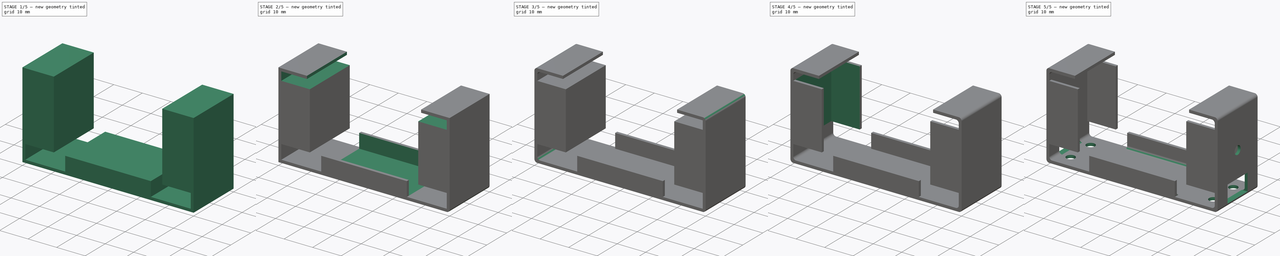
[diagram: build sequence overview — one tinted view per stage of 5, left to right]
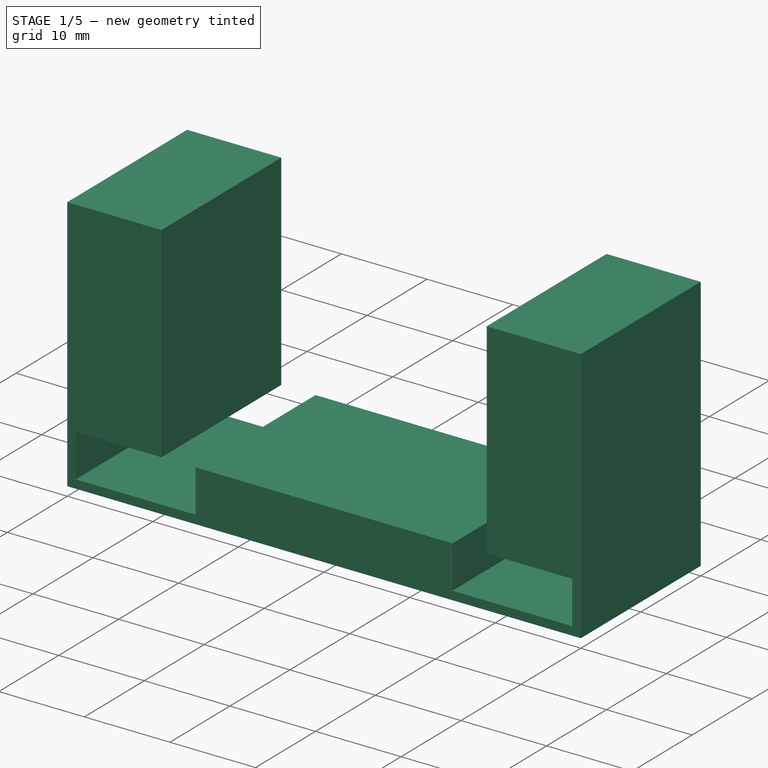
[diagram: stage 1 of 5 — iso view after this stage's code; geometry added in this stage tinted green]
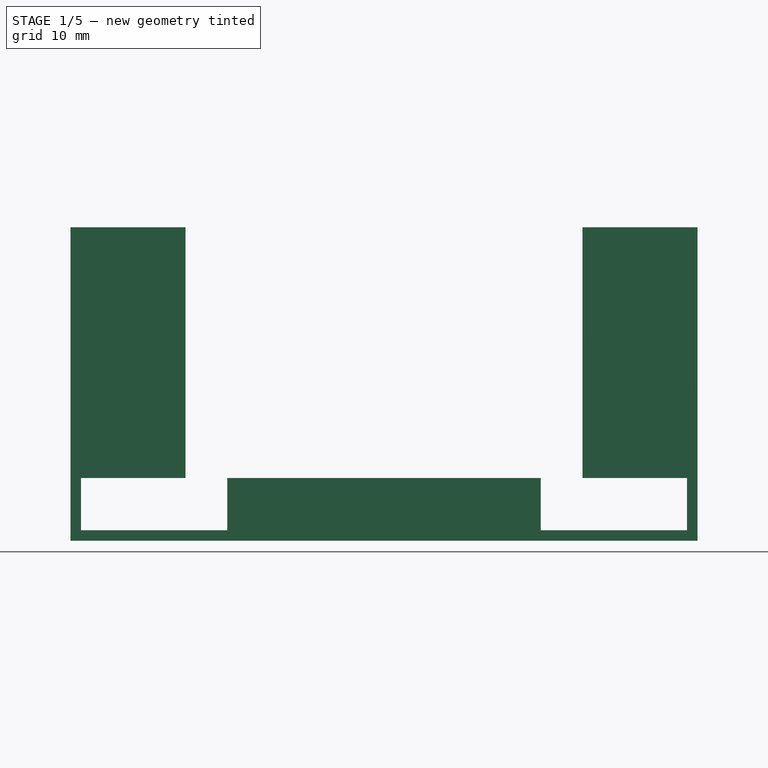
[diagram: stage 1 of 5 — front view after this stage's code; geometry added in this stage tinted green]
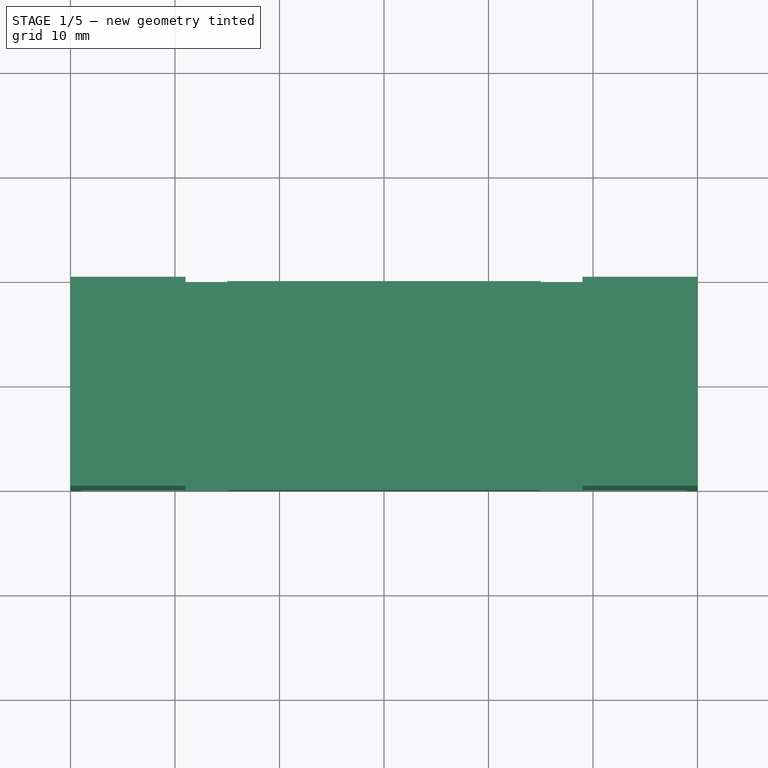
[diagram: stage 1 of 5 — top view after this stage's code; geometry added in this stage tinted green]
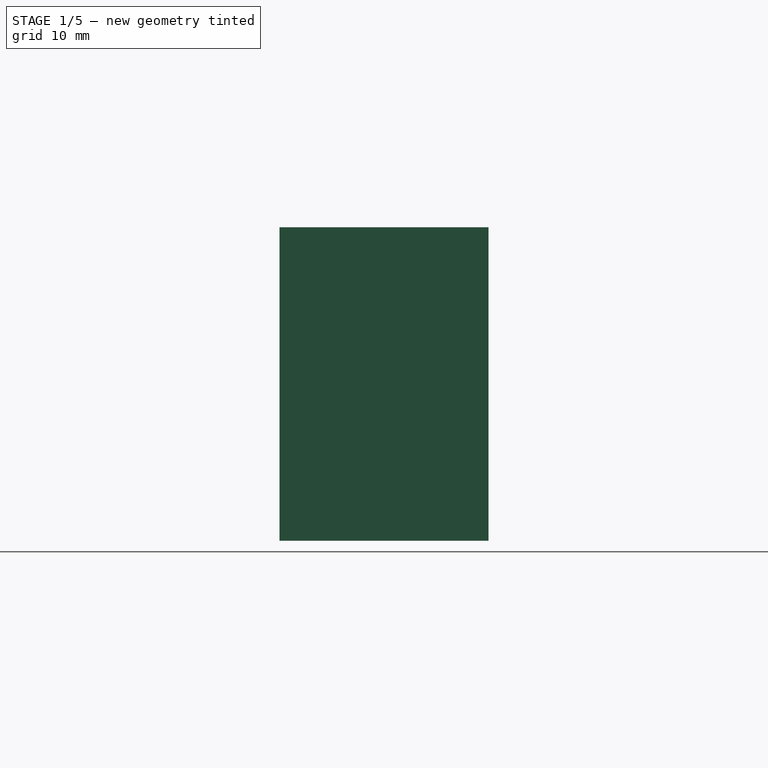
[diagram: stage 1 of 5 — right view after this stage's code; geometry added in this stage tinted green]
FCSTD DOCUMENT  (FreeCAD 0.17R13541 (Git))
Label: supp1
License: All rights reserved
LicenseURL: http://en.wikipedia.org/wiki/All_rights_reserved
objects: Sketcher::SketchObject×17, PartDesign::Pocket×12, PartDesign::Fillet×10, PartDesign::Body×2, PartDesign::Pad×1
note: 55 computed .brp shape members not serialized (recipe doc carries the construction recipe); baked Part::Feature solids carry a one-line shape summary decoded from their .brp

FEATURE [PartDesign::Body] Body
  Origin = -> Origin
FEATURE [Sketcher::SketchObject] Sketch
  MapMode = 5
  Placement = pos=(0,0,0) rot=(1,0,0;1.5708rad)
  Support = -> [XZ_Plane001]
  sketch-geometry (4):
    g0: LineSegment StartX=0 StartY=0 StartZ=0 EndX=60 EndY=0 EndZ=0
    g1: LineSegment StartX=60 StartY=0 StartZ=0 EndX=60 EndY=30 EndZ=0
    g2: LineSegment StartX=60 StartY=30 StartZ=0 EndX=0 EndY=30 EndZ=0
    g3: LineSegment StartX=0 StartY=30 StartZ=0 EndX=0 EndY=0 EndZ=0
  constraints (11):
    c: Coincident(g0,g1)
    c: Coincident(g1,g2)
    c: Coincident(g2,g3)
    c: Coincident(g3,g0)
    c: Horizontal(g0)
    c: Horizontal(g2)
    c: Vertical(g1)
    c: Vertical(g3)
    c: Coincident(g0,g-1)
    c: DistanceX(g0,g0) = 60
    c: DistanceY(g3,g3) = 30
FEATURE [PartDesign::Pad] Pad
  Length = 20
  Length2 = 100
  Placement = pos=(0,0,0) rot=(1,0,0;1.5708rad)
  Profile = -> Sketch
  Type = 0
FEATURE [Sketcher::SketchObject] Sketch001
  ExternalGeometry = -> [Pad]
  MapMode = 5
  Placement = pos=(0,-20,0) rot=(1,0,0;1.5708rad)
  Support = -> [Pad]
  sketch-geometry (4):
    g0: LineSegment StartX=1 StartY=1 StartZ=0 EndX=15 EndY=1 EndZ=0
    g1: LineSegment StartX=15 StartY=1 StartZ=0 EndX=15 EndY=6 EndZ=0
    g2: LineSegment StartX=15 StartY=6 StartZ=0 EndX=1 EndY=6 EndZ=0
    g3: LineSegment StartX=1 StartY=6 StartZ=0 EndX=1 EndY=1 EndZ=0
  constraints (12):
    c: Coincident(g0,g1)
    c: Coincident(g1,g2)
    c: Coincident(g2,g3)
    c: Coincident(g3,g0)
    c: Horizontal(g0)
    c: Horizontal(g2)
    c: Vertical(g1)
    c: Vertical(g3)
    c: DistanceY(g3,g3) = 5
    c: DistanceX(g2,g2) = 14
    c: DistanceX(g0) = 1
    c: DistanceY(g0) = 1
FEATURE [PartDesign::Pocket] Pocket
  BaseFeature = -> Pad
  Length = 5
  Length2 = 100
  Placement = pos=(0,0,0) rot=(1,0,0;1.5708rad)
  Profile = -> Sketch001
  Type = 1
FEATURE [Sketcher::SketchObject] Sketch002
  ExternalGeometry = -> [Pocket]
  MapMode = 5
  Placement = pos=(0,-20,0) rot=(1,0,0;1.5708rad)
  Support = -> [Pocket]
  sketch-geometry (4):
    g0: LineSegment StartX=45 StartY=6 StartZ=0 EndX=59 EndY=6 EndZ=0
    g1: LineSegment StartX=59 StartY=6 StartZ=0 EndX=59 EndY=1 EndZ=0
    g2: LineSegment StartX=59 StartY=1 StartZ=0 EndX=45 EndY=1 EndZ=0
    g3: LineSegment StartX=45 StartY=1 StartZ=0 EndX=45 EndY=6 EndZ=0
  constraints (10):
    c: Coincident(g0,g1)
    c: Coincident(g1,g2)
    c: Coincident(g2,g3)
    c: Coincident(g3,g0)
    c: Horizontal(g0)
    c: Horizontal(g2)
    c: Vertical(g1)
    c: Vertical(g3)
    c: DistanceX(g0,g0) = 14
    c: DistanceY(g3,g3) = 5
FEATURE [PartDesign::Pocket] Pocket001
  BaseFeature = -> Pocket
  Length = 5
  Length2 = 100
  Placement = pos=(0,0,0) rot=(1,0,0;1.5708rad)
  Profile = -> Sketch002
  Type = 1
FEATURE [Sketcher::SketchObject] Sketch003
  ExternalGeometry = -> [Pocket001]
  MapMode = 5
  Placement = pos=(0,-20,0) rot=(1,0,0;1.5708rad)
  Support = -> [Pocket001]
  sketch-geometry (4):
    g0: LineSegment StartX=11 StartY=6 StartZ=0 EndX=49 EndY=6 EndZ=0
    g1: LineSegment StartX=49 StartY=6 StartZ=0 EndX=49 EndY=26 EndZ=0
    g2: LineSegment StartX=49 StartY=26 StartZ=0 EndX=11 EndY=26 EndZ=0
    g3: LineSegment StartX=11 StartY=26 StartZ=0 EndX=11 EndY=6 EndZ=0
  constraints (11):
    c: DistanceX(g0,g-3) = 4
    c: DistanceX(g-4,g0) = 4
    c: Coincident(g0,g1)
    c: Coincident(g1,g2)
    c: Coincident(g2,g3)
    c: Coincident(g3,g0)
    c: Horizontal(g0)
    c: Horizontal(g2)
    c: Vertical(g1)
    c: Vertical(g3)
    c: DistanceY(g3,g3) = 20
FEATURE [PartDesign::Pocket] Pocket002
  BaseFeature = -> Pocket001
  Length = 5
  Length2 = 100
  Placement = pos=(0,0,0) rot=(1,0,0;1.5708rad)
  Profile = -> Sketch003
  Type = 1
FEATURE [Sketcher::SketchObject] Sketch004
  MapMode = 5
  Placement = pos=(0,-20,0) rot=(1,0,0;1.5708rad)
  Support = -> [Pocket002]
FEATURE [Sketcher::SketchObject] Sketch005
  ExternalGeometry = -> [Pocket002]
  MapMode = 5
  Placement = pos=(0,-20,0) rot=(1,0,0;1.5708rad)
  Support = -> [Pocket002]
  sketch-geometry (4):
    g0: LineSegment StartX=11 StartY=26 StartZ=0 EndX=49 EndY=26 EndZ=0
    g1: LineSegment StartX=49 StartY=26 StartZ=0 EndX=49 EndY=31 EndZ=0
    g2: LineSegment StartX=49 StartY=31 StartZ=0 EndX=11 EndY=31 EndZ=0
    g3: LineSegment StartX=11 StartY=31 StartZ=0 EndX=11 EndY=26 EndZ=0
  constraints (11):
    c: Coincident(g0,g1)
    c: Coincident(g1,g2)
    c: Coincident(g2,g3)
    c: Coincident(g3,g0)
    c: Horizontal(g0)
    c: Horizontal(g2)
    c: Vertical(g1)
    c: Vertical(g3)
    c: Coincident(g0,g-3)
    c: DistanceY(g3,g3) = 5
    c: Coincident(g0,g-4)
FEATURE [PartDesign::Pocket] Pocket003
  BaseFeature = -> Pocket002
  Length = 5
  Length2 = 100
  Placement = pos=(0,0,0) rot=(1,0,0;1.5708rad)
  Profile = -> Sketch005
  Type = 1
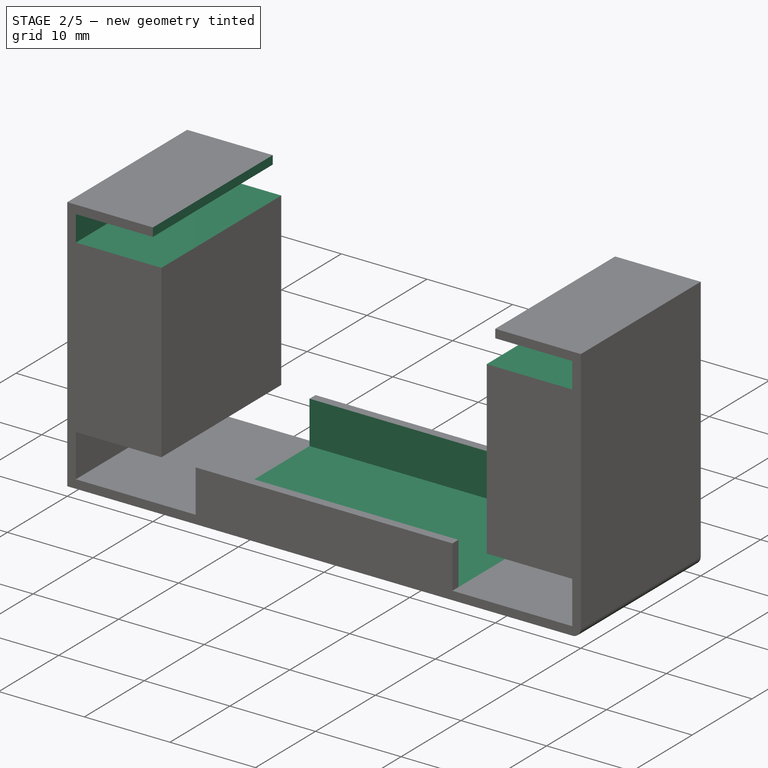
[diagram: stage 2 of 5 — iso view after this stage's code; geometry added in this stage tinted green]
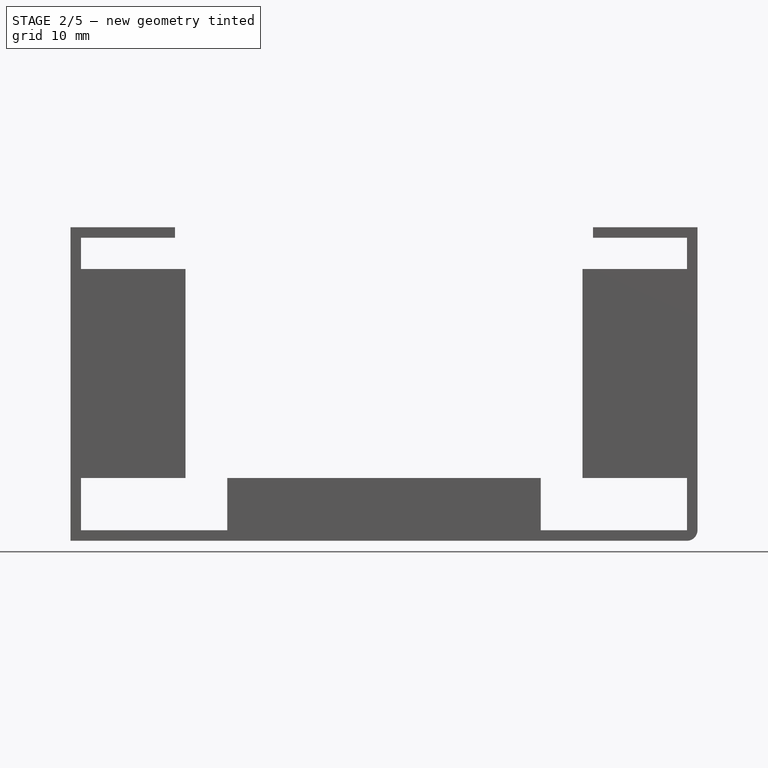
[diagram: stage 2 of 5 — front view after this stage's code; geometry added in this stage tinted green]
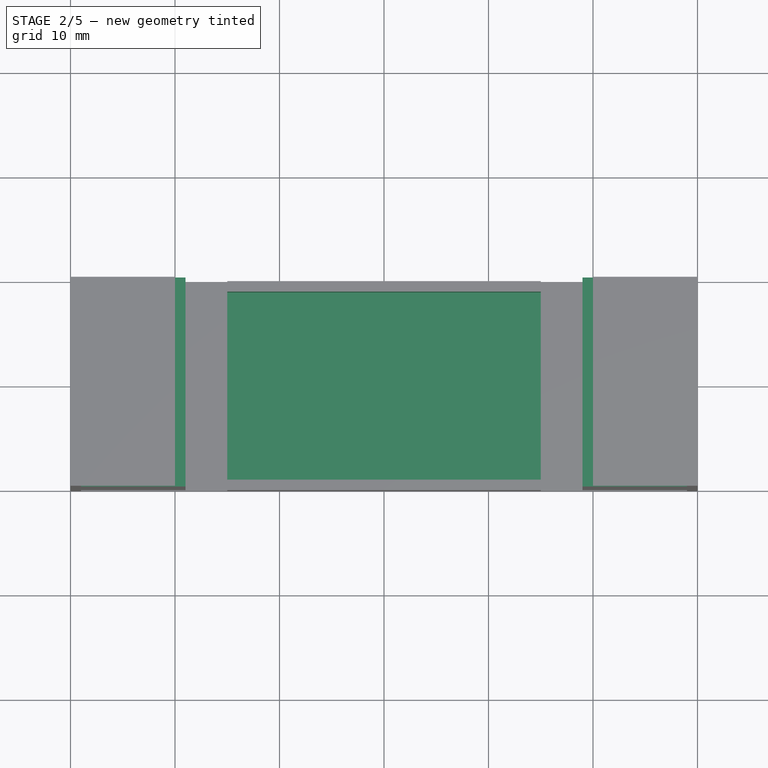
[diagram: stage 2 of 5 — top view after this stage's code; geometry added in this stage tinted green]
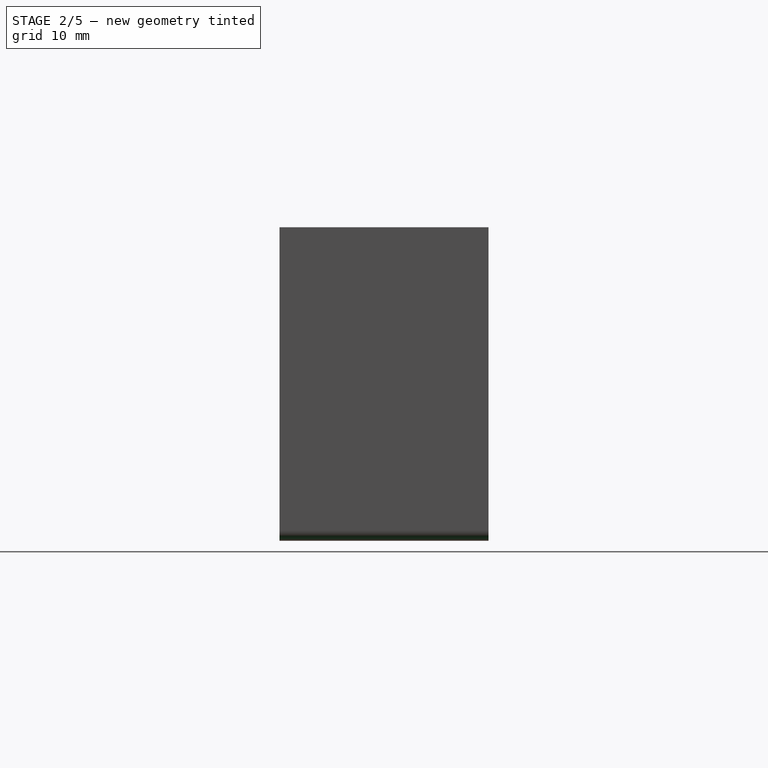
[diagram: stage 2 of 5 — right view after this stage's code; geometry added in this stage tinted green]
FEATURE [Sketcher::SketchObject] Sketch006
  ExternalGeometry = -> [Pocket003]
  MapMode = 5
  Placement = pos=(0,-20,0) rot=(1,0,0;1.5708rad)
  Support = -> [Pocket003]
  sketch-geometry (8):
    g0: LineSegment StartX=1 StartY=29 StartZ=0 EndX=10 EndY=29 EndZ=0
    g1: LineSegment StartX=10 StartY=29 StartZ=0 EndX=10 EndY=26 EndZ=0
    g2: LineSegment StartX=10 StartY=26 StartZ=0 EndX=1 EndY=26 EndZ=0
    g3: LineSegment StartX=1 StartY=26 StartZ=0 EndX=1 EndY=29 EndZ=0
    g4: LineSegment StartX=50 StartY=29 StartZ=0 EndX=59 EndY=29 EndZ=0
    g5: LineSegment StartX=59 StartY=29 StartZ=0 EndX=59 EndY=26 EndZ=0
    g6: LineSegment StartX=59 StartY=26 StartZ=0 EndX=50 EndY=26 EndZ=0
    g7: LineSegment StartX=50 StartY=26 StartZ=0 EndX=50 EndY=29 EndZ=0
  constraints (20):
    c: Coincident(g0,g1)
    c: Coincident(g1,g2)
    c: Coincident(g2,g3)
    c: Coincident(g3,g0)
    c: Horizontal(g0)
    c: Horizontal(g2)
    c: Vertical(g1)
    c: Vertical(g3)
    c: DistanceX(g0,g0) = 9
    c: DistanceY(g1,g1) = 3
    c: Coincident(g4,g5)
    c: Coincident(g5,g6)
    c: Coincident(g6,g7)
    c: Coincident(g7,g4)
    c: Horizontal(g4)
    c: Horizontal(g6)
    c: Vertical(g5)
    c: Vertical(g7)
    c: DistanceX(g4,g4) = 9
    c: DistanceY(g5,g5) = 3
FEATURE [PartDesign::Pocket] Pocket004
  BaseFeature = -> Pocket003
  Length = 5
  Length2 = 100
  Placement = pos=(0,0,0) rot=(1,0,0;1.5708rad)
  Profile = -> Sketch006
  Type = 1
FEATURE [Sketcher::SketchObject] Sketch007
  ExternalGeometry = -> [Pocket004]
  MapMode = 5
  Placement = pos=(0,-20,0) rot=(1,0,0;1.5708rad)
  Support = -> [Pocket004]
  sketch-geometry (8):
    g0: LineSegment StartX=10 StartY=26 StartZ=0 EndX=11 EndY=26 EndZ=0
    g1: LineSegment StartX=11 StartY=26 StartZ=0 EndX=11 EndY=30 EndZ=0
    g2: LineSegment StartX=11 StartY=30 StartZ=0 EndX=10 EndY=30 EndZ=0
    g3: LineSegment StartX=10 StartY=30 StartZ=0 EndX=10 EndY=26 EndZ=0
    g4: LineSegment StartX=50 StartY=26 StartZ=0 EndX=49 EndY=26 EndZ=0
    g5: LineSegment StartX=49 StartY=26 StartZ=0 EndX=49 EndY=30 EndZ=0
    g6: LineSegment StartX=49 StartY=30 StartZ=0 EndX=50 EndY=30 EndZ=0
    g7: LineSegment StartX=50 StartY=30 StartZ=0 EndX=50 EndY=26 EndZ=0
  constraints (20):
    c: Coincident(g0,g1)
    c: Coincident(g1,g2)
    c: Coincident(g2,g3)
    c: Coincident(g3,g0)
    c: Horizontal(g0)
    c: Horizontal(g2)
    c: Vertical(g1)
    c: Vertical(g3)
    c: Coincident(g1,g-3)
    c: Coincident(g4,g5)
    c: Coincident(g5,g6)
    c: Coincident(g6,g7)
    c: Coincident(g7,g4)
    c: Horizontal(g4)
    c: Horizontal(g6)
    c: Vertical(g5)
    c: Vertical(g7)
    c: Coincident(g4,g-6)
    c: Coincident(g5,g-5)
    c: Coincident(g0,g-4)
FEATURE [PartDesign::Pocket] Pocket005
  BaseFeature = -> Pocket004
  Length = 5
  Length2 = 100
  Placement = pos=(0,0,0) rot=(1,0,0;1.5708rad)
  Profile = -> Sketch007
  Type = 1
FEATURE [Sketcher::SketchObject] Sketch008
  ExternalGeometry = -> [Pocket005]
  MapMode = 5
  Placement = pos=(0,0,6) rot=(0,0,1;3.14159rad)
  Support = -> [Pocket005]
  sketch-geometry (4):
    g0: LineSegment StartX=-45 StartY=19 StartZ=0 EndX=-15 EndY=19 EndZ=0
    g1: LineSegment StartX=-15 StartY=19 StartZ=0 EndX=-15 EndY=1 EndZ=0
    g2: LineSegment StartX=-15 StartY=1 StartZ=0 EndX=-45 EndY=1 EndZ=0
    g3: LineSegment StartX=-45 StartY=1 StartZ=0 EndX=-45 EndY=19 EndZ=0
  constraints (8):
    c: Coincident(g0,g1)
    c: Coincident(g1,g2)
    c: Coincident(g2,g3)
    c: Coincident(g3,g0)
    c: Horizontal(g0)
    c: Horizontal(g2)
    c: Vertical(g1)
    c: Vertical(g3)
FEATURE [PartDesign::Pocket] Pocket006
  BaseFeature = -> Pocket005
  Length = 5
  Length2 = 100
  Placement = pos=(0,0,0) rot=(1,0,0;1.5708rad)
  Profile = -> Sketch008
  Type = 0
FEATURE [PartDesign::Fillet] Fillet
  Base = -> Pocket006 [Edge2]
  BaseFeature = -> Pocket006
  Placement = pos=(0,0,0) rot=(1,0,0;1.5708rad)
  Radius = 1
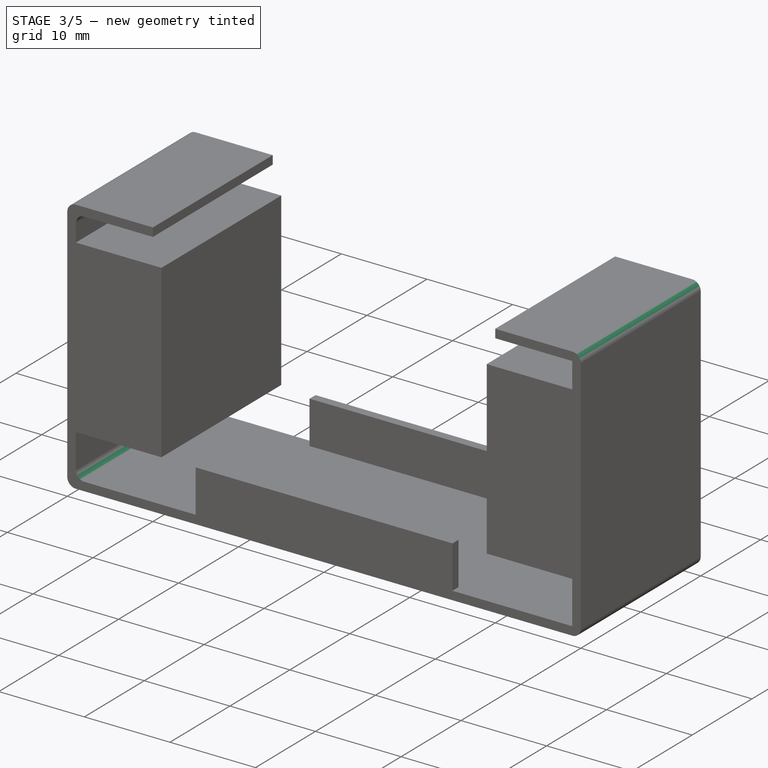
[diagram: stage 3 of 5 — iso view after this stage's code; geometry added in this stage tinted green]
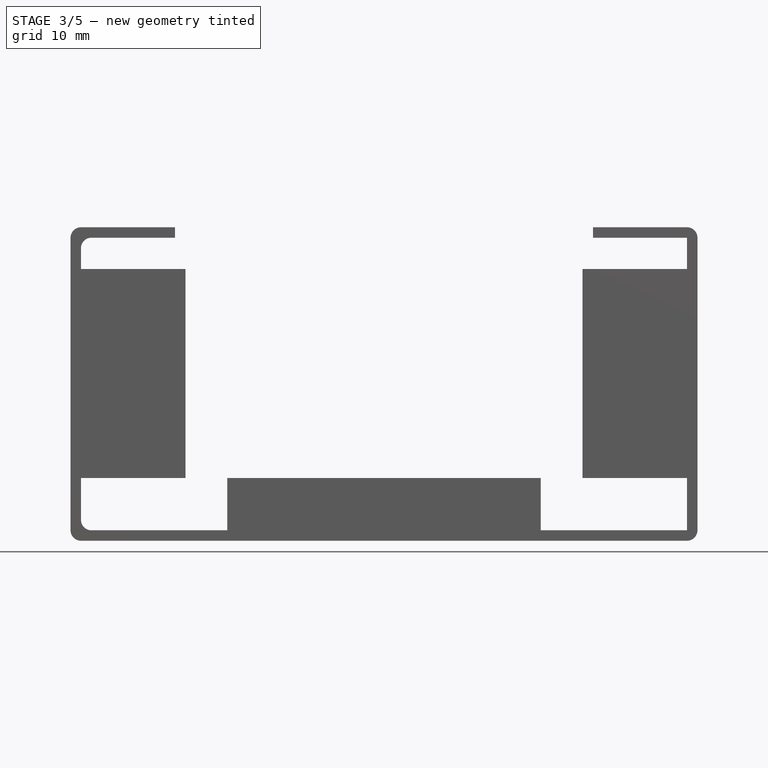
[diagram: stage 3 of 5 — front view after this stage's code; geometry added in this stage tinted green]
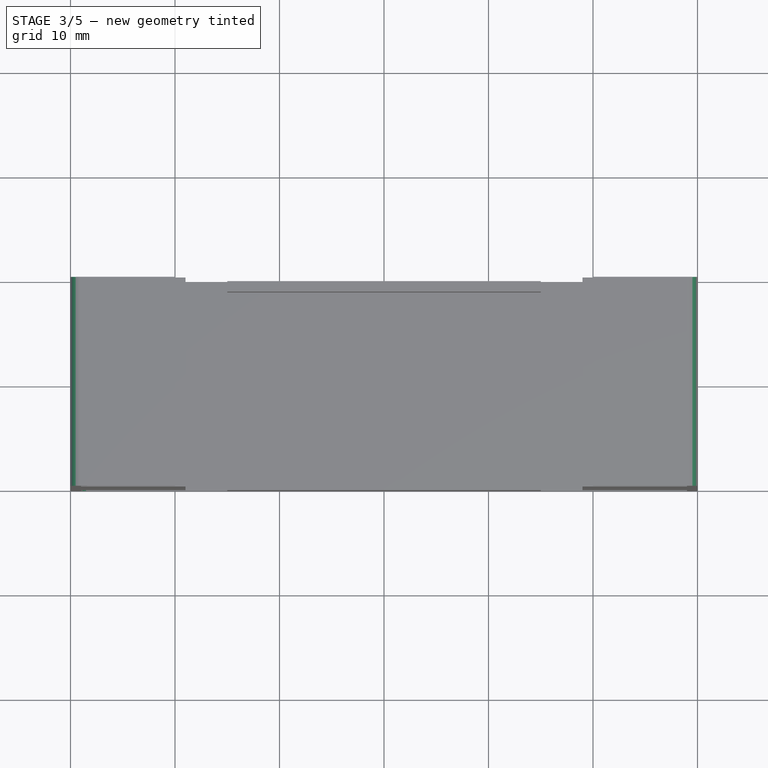
[diagram: stage 3 of 5 — top view after this stage's code; geometry added in this stage tinted green]
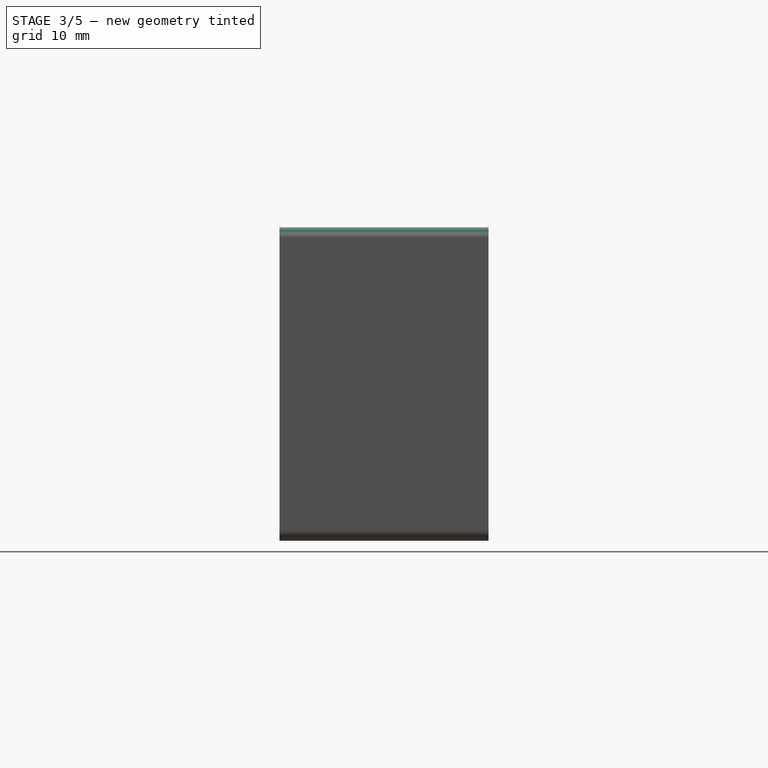
[diagram: stage 3 of 5 — right view after this stage's code; geometry added in this stage tinted green]
FEATURE [PartDesign::Fillet] Fillet001
  Base = -> Fillet [Edge3]
  BaseFeature = -> Fillet
  Placement = pos=(0,0,0) rot=(1,0,0;1.5708rad)
  Radius = 1
FEATURE [PartDesign::Fillet] Fillet002
  Base = -> Fillet001 [Edge61]
  BaseFeature = -> Fillet001
  Placement = pos=(0,0,0) rot=(1,0,0;1.5708rad)
  Radius = 1
FEATURE [PartDesign::Fillet] Fillet003
  Base = -> Fillet002 [Edge47]
  BaseFeature = -> Fillet002
  Placement = pos=(0,0,0) rot=(1,0,0;1.5708rad)
  Radius = 1
FEATURE [PartDesign::Fillet] Fillet004
  Base = -> Fillet003 [Edge65]
  BaseFeature = -> Fillet003
  Placement = pos=(0,0,0) rot=(1,0,0;1.5708rad)
  Radius = 1
FEATURE [PartDesign::Fillet] Fillet005
  Base = -> Fillet004 [Edge60]
  BaseFeature = -> Fillet004
  Placement = pos=(0,0,0) rot=(1,0,0;1.5708rad)
  Radius = 1
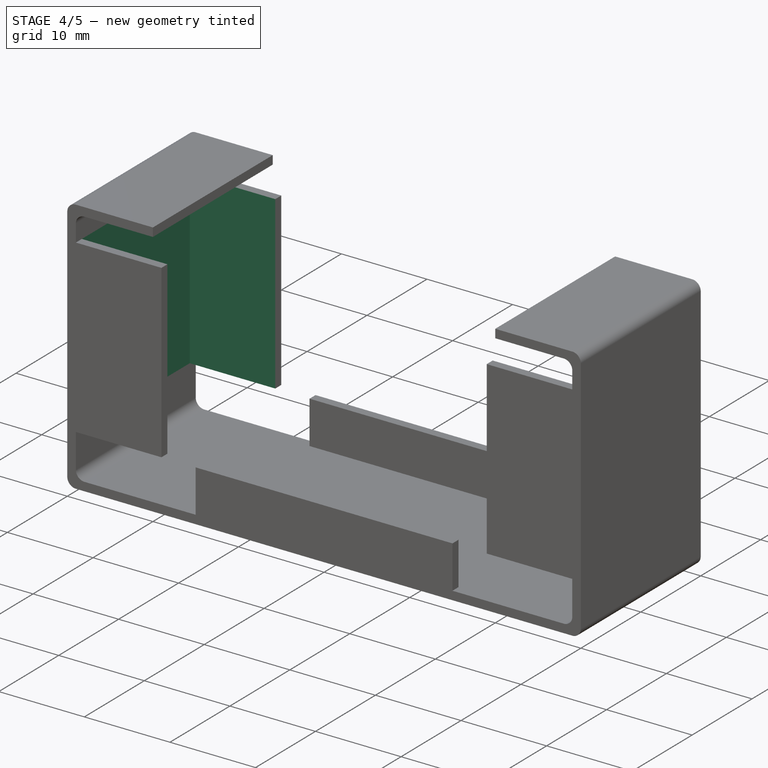
[diagram: stage 4 of 5 — iso view after this stage's code; geometry added in this stage tinted green]
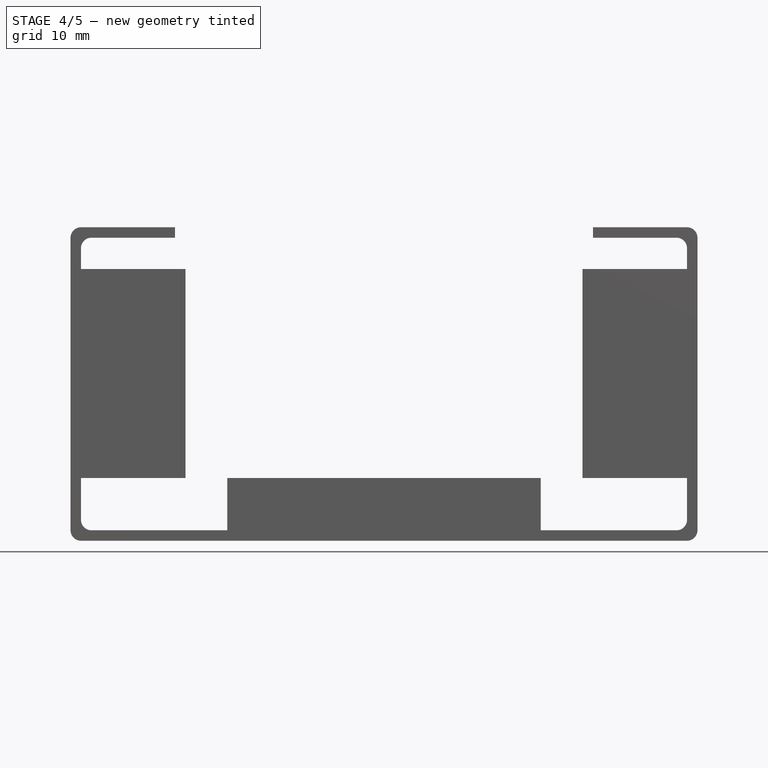
[diagram: stage 4 of 5 — front view after this stage's code; geometry added in this stage tinted green]
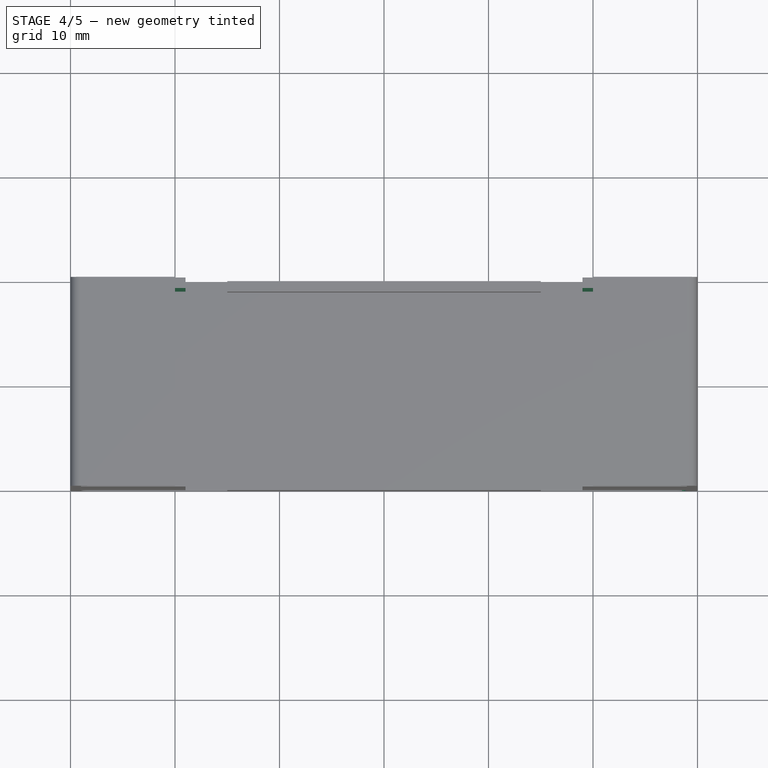
[diagram: stage 4 of 5 — top view after this stage's code; geometry added in this stage tinted green]
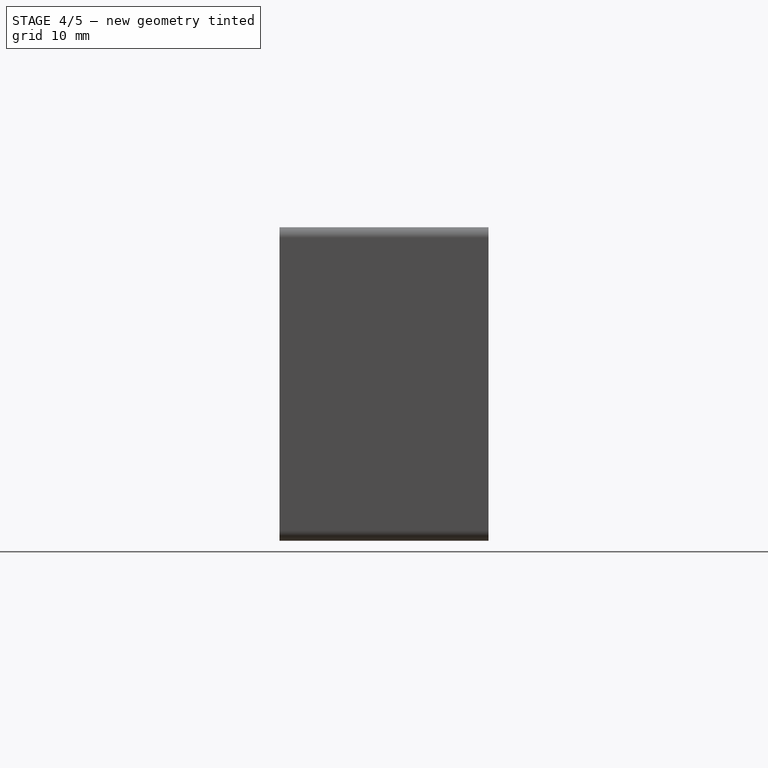
[diagram: stage 4 of 5 — right view after this stage's code; geometry added in this stage tinted green]
FEATURE [PartDesign::Fillet] Fillet006
  Base = -> Fillet005 [Edge85]
  BaseFeature = -> Fillet005
  Placement = pos=(0,0,0) rot=(1,0,0;1.5708rad)
  Radius = 1
FEATURE [PartDesign::Fillet] Fillet007
  Base = -> Fillet006 [Edge56]
  BaseFeature = -> Fillet006
  Placement = pos=(0,0,0) rot=(1,0,0;1.5708rad)
  Radius = 1
FEATURE [Sketcher::SketchObject] Sketch009
  MapMode = 5
  Placement = pos=(49,0,0) rot=(0.707107,0,-0.707107;3.14159rad)
  Support = -> [Fillet007]
FEATURE [Sketcher::SketchObject] Sketch010
  MapMode = 5
  Placement = pos=(49,0,0) rot=(0.707107,0,-0.707107;3.14159rad)
  Support = -> [Fillet007]
FEATURE [Sketcher::SketchObject] Sketch011
  ExternalGeometry = -> [Fillet007]
  MapMode = 5
  Placement = pos=(49,0,0) rot=(0.707107,0,-0.707107;3.14159rad)
  Support = -> [Fillet007]
  sketch-geometry (4):
    g0: LineSegment StartX=-26 StartY=1 StartZ=0 EndX=-6 EndY=1 EndZ=0
    g1: LineSegment StartX=-6 StartY=1 StartZ=0 EndX=-6 EndY=19 EndZ=0
    g2: LineSegment StartX=-6 StartY=19 StartZ=0 EndX=-26 EndY=19 EndZ=0
    g3: LineSegment StartX=-26 StartY=19 StartZ=0 EndX=-26 EndY=1 EndZ=0
  constraints (8):
    c: Coincident(g0,g1)
    c: Coincident(g1,g2)
    c: Coincident(g2,g3)
    c: Coincident(g3,g0)
    c: Horizontal(g0)
    c: Horizontal(g2)
    c: Vertical(g1)
    c: Vertical(g3)
FEATURE [PartDesign::Pocket] Pocket007
  BaseFeature = -> Fillet007
  Length = 10
  Length2 = 100
  Placement = pos=(0,0,0) rot=(1,0,0;1.5708rad)
  Profile = -> Sketch011
  Type = 0
FEATURE [Sketcher::SketchObject] Sketch012
  ExternalGeometry = -> [Pocket007]
  MapMode = 5
  Placement = pos=(11,0,0) rot=(0.707107,0,0.707107;3.14159rad)
  Support = -> [Pocket007]
  sketch-geometry (4):
    g0: LineSegment StartX=6 StartY=19 StartZ=0 EndX=26 EndY=19 EndZ=0
    g1: LineSegment StartX=26 StartY=19 StartZ=0 EndX=26 EndY=1 EndZ=0
    g2: LineSegment StartX=26 StartY=1 StartZ=0 EndX=6 EndY=1 EndZ=0
    g3: LineSegment StartX=6 StartY=1 StartZ=0 EndX=6 EndY=19 EndZ=0
  constraints (8):
    c: Coincident(g0,g1)
    c: Coincident(g1,g2)
    c: Coincident(g2,g3)
    c: Coincident(g3,g0)
    c: Horizontal(g0)
    c: Horizontal(g2)
    c: Vertical(g1)
    c: Vertical(g3)
FEATURE [PartDesign::Pocket] Pocket008
  BaseFeature = -> Pocket007
  Length = 10
  Length2 = 100
  Placement = pos=(0,0,0) rot=(1,0,0;1.5708rad)
  Profile = -> Sketch012
  Type = 0
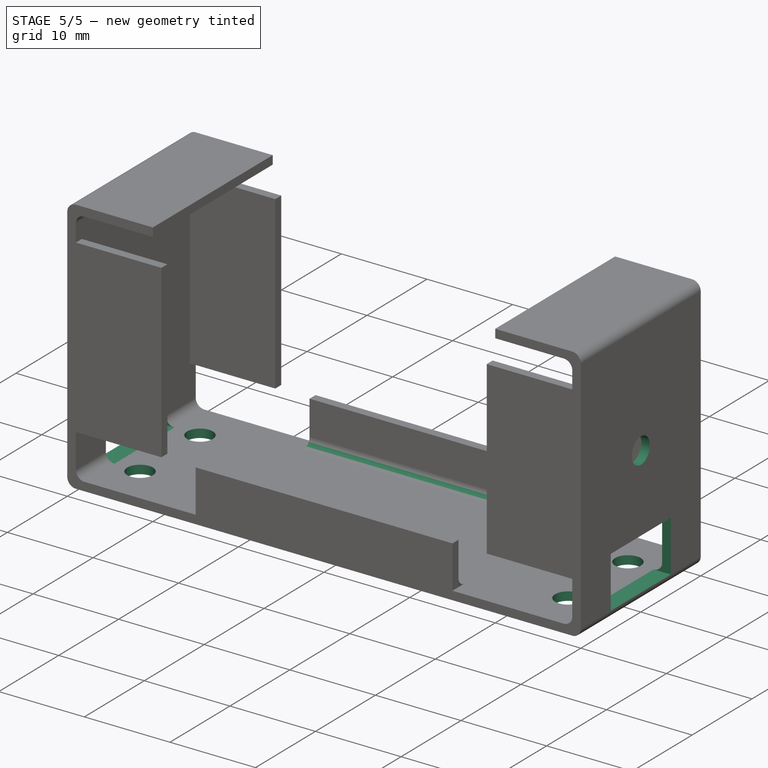
[diagram: stage 5 of 5 — iso view after this stage's code; geometry added in this stage tinted green]
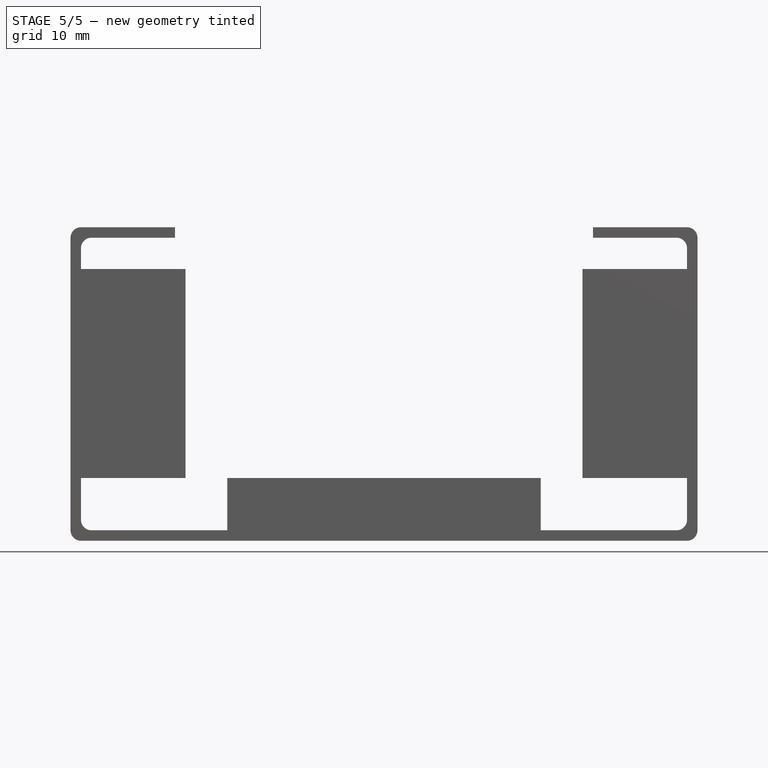
[diagram: stage 5 of 5 — front view after this stage's code; geometry added in this stage tinted green]
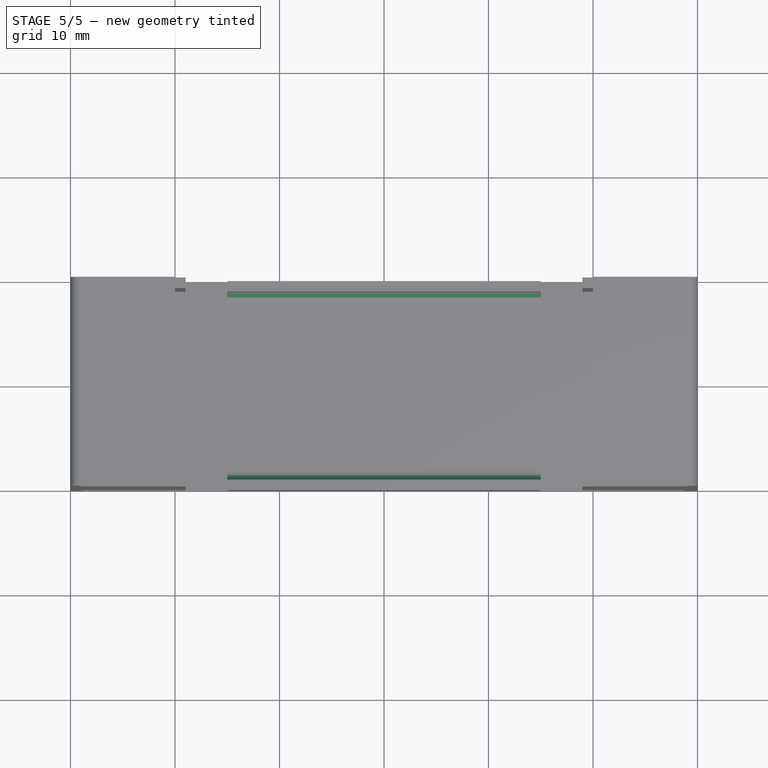
[diagram: stage 5 of 5 — top view after this stage's code; geometry added in this stage tinted green]
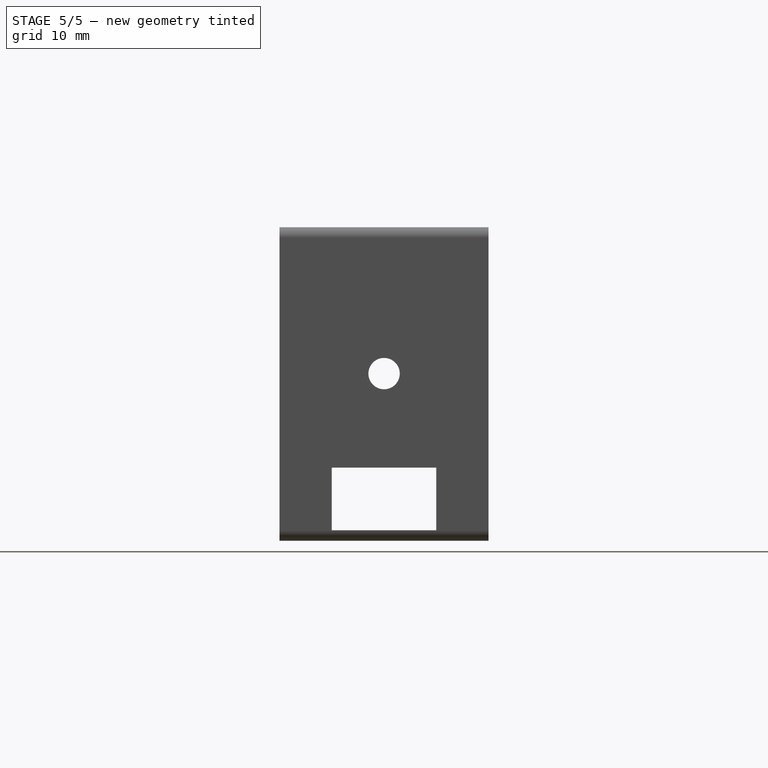
[diagram: stage 5 of 5 — right view after this stage's code; geometry added in this stage tinted green]
FEATURE [PartDesign::Fillet] Fillet008
  Base = -> Pocket008 [Edge132]
  BaseFeature = -> Pocket008
  Placement = pos=(0,0,0) rot=(1,0,0;1.5708rad)
  Radius = 1
FEATURE [PartDesign::Fillet] Fillet009
  Base = -> Fillet008 [Edge15]
  BaseFeature = -> Fillet008
  Placement = pos=(0,0,0) rot=(1,0,0;1.5708rad)
  Radius = 1
FEATURE [Sketcher::SketchObject] Sketch013
  MapMode = 5
  Placement = pos=(60,0,0) rot=(0.707107,0,0.707107;3.14159rad)
  Support = -> [Fillet009]
FEATURE [Sketcher::SketchObject] Sketch014
  ExternalGeometry = -> [Fillet009]
  MapMode = 5
  Placement = pos=(60,0,0) rot=(0.707107,0,0.707107;3.14159rad)
  Support = -> [Fillet009]
  sketch-geometry (6):
    g0: LineSegment StartX=1 StartY=15 StartZ=0 EndX=7 EndY=15 EndZ=0
    g1: LineSegment StartX=7 StartY=15 StartZ=0 EndX=7 EndY=5 EndZ=0
    g2: LineSegment StartX=7 StartY=5 StartZ=0 EndX=1 EndY=5 EndZ=0
    g3: LineSegment StartX=1 StartY=5 StartZ=0 EndX=1 EndY=15 EndZ=0
    g4: GeomPoint X=1 Y=10 Z=0
    g5: GeomPoint X=1 Y=10 Z=0
  constraints (16):
    c: Coincident(g0,g1)
    c: Coincident(g1,g2)
    c: Coincident(g2,g3)
    c: Coincident(g3,g0)
    c: Horizontal(g0)
    c: Horizontal(g2)
    c: Vertical(g1)
    c: Vertical(g3)
    c: DistanceY(g3,g3) = 10
    c: DistanceX(g0,g0) = 6
    c: DistanceY(g-3,g-3) = 20
    c: PointOnObject(g4,g3)
    c: DistanceY(g2,g4) = 5
    c: PointOnObject(g5,g-3)
    c: DistanceY(g5,g-4) = 10
    c: Coincident(g5,g4)
FEATURE [PartDesign::Pocket] Pocket009
  BaseFeature = -> Fillet009
  Length = 5
  Length2 = 100
  Placement = pos=(0,0,0) rot=(1,0,0;1.5708rad)
  Profile = -> Sketch014
  Type = 1
FEATURE [Sketcher::SketchObject] Sketch015
  ExternalGeometry = -> [Pocket009]
  MapMode = 5
  Placement = pos=(0,0,0) rot=(1,0,0;3.14159rad)
  Support = -> [Pocket009]
  sketch-geometry (8):
    g0: GeomPoint X=55 Y=15 Z=0
    g1: GeomPoint X=55 Y=5 Z=0
    g2: Circle CenterX=55 CenterY=5 CenterZ=0 NormalX=0 NormalY=0 NormalZ=1 AngleXU=0 Radius=1.5
    g3: Circle CenterX=55 CenterY=15 CenterZ=0 NormalX=0 NormalY=0 NormalZ=1 AngleXU=0 Radius=1.5
    g4: GeomPoint X=5 Y=15 Z=0
    g5: GeomPoint X=5 Y=5 Z=0
    g6: Circle CenterX=5 CenterY=5 CenterZ=0 NormalX=0 NormalY=0 NormalZ=1 AngleXU=0 Radius=1.5
    g7: Circle CenterX=5 CenterY=15 CenterZ=0 NormalX=0 NormalY=0 NormalZ=1 AngleXU=0 Radius=1.5
  constraints (7):
    c: DistanceY(g-3,g-3) = 20
    c: Radius(g2) = 1.5
    c: Radius(g3) = 1.5
    c: Coincident(g6,g5)
    c: Coincident(g7,g4)
    c: Radius(g7) = 1.5
    c: Radius(g6) = 1.5
FEATURE [PartDesign::Pocket] Pocket010
  BaseFeature = -> Pocket009
  Length = 5
  Length2 = 100
  Placement = pos=(0,0,0) rot=(1,0,0;1.5708rad)
  Profile = -> Sketch015
  Type = 0
FEATURE [Sketcher::SketchObject] Sketch016
  ExternalGeometry = -> [Pocket010]
  MapMode = 5
  Placement = pos=(0,0,0) rot=(0.707107,0,-0.707107;3.14159rad)
  Support = -> [Pocket010]
  sketch-geometry (3):
    g0: GeomPoint X=-7 Y=10 Z=0
    g1: GeomPoint X=-16 Y=10 Z=0
    g2: Circle CenterX=-15.9941 CenterY=9.99221 CenterZ=0 NormalX=0 NormalY=0 NormalZ=1 AngleXU=0 Radius=1.5
  constraints (5):
    c: DistanceY(g-3,g-3) = 10
    c: PointOnObject(g0,g-3)
    c: DistanceY(g-3,g0) = 5
    c: DistanceX(g1,g0) = 9
    c: Radius(g2) = 1.5
FEATURE [PartDesign::Pocket] Pocket011
  BaseFeature = -> Pocket010
  Length = 5
  Length2 = 100
  Placement = pos=(0,0,0) rot=(1,0,0;1.5708rad)
  Profile = -> Sketch016
  Type = 1
FEATURE [PartDesign::Body] Body001
  Group = -> [Sketch,Pad,Sketch001,Pocket,Sketch002,Pocket001,Sketch003,Pocket002,Sketch004,Sketch005,Pocket003,Sketch006,Pocket004,Sketch007,Pocket005,Sketch008,Pocket006,Fillet,Fillet001,Fillet002,Fillet003,Fillet004,Fillet005,Fillet006,Fillet007,Sketch009,Sketch010,Sketch011,Pocket007,Sketch012,Pocket008,Fillet008,Fillet009,Sketch013,Sketch014,Pocket009,Sketch015,Pocket010,Sketch016,Pocket011]
  Origin = -> Origin001
  Tip = -> Pocket011
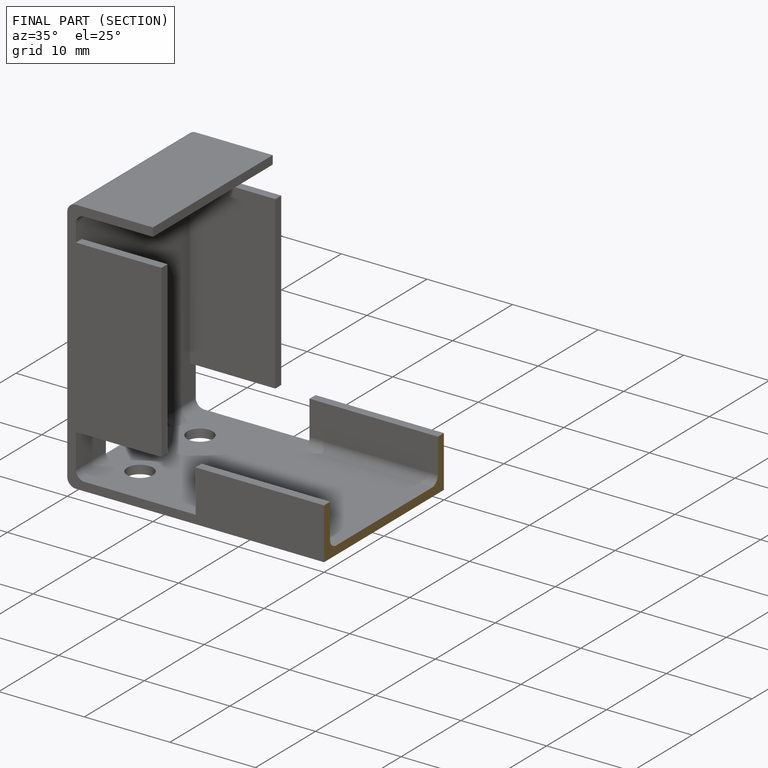
[diagram: finished part — half-section view (interior)]
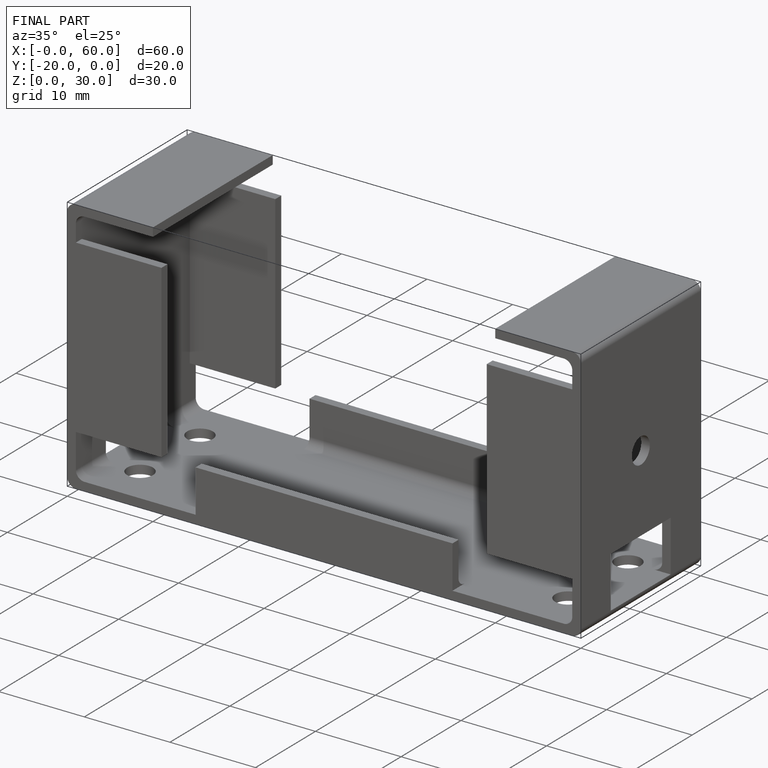
[diagram: finished part — iso view with bounding-box wireframe]
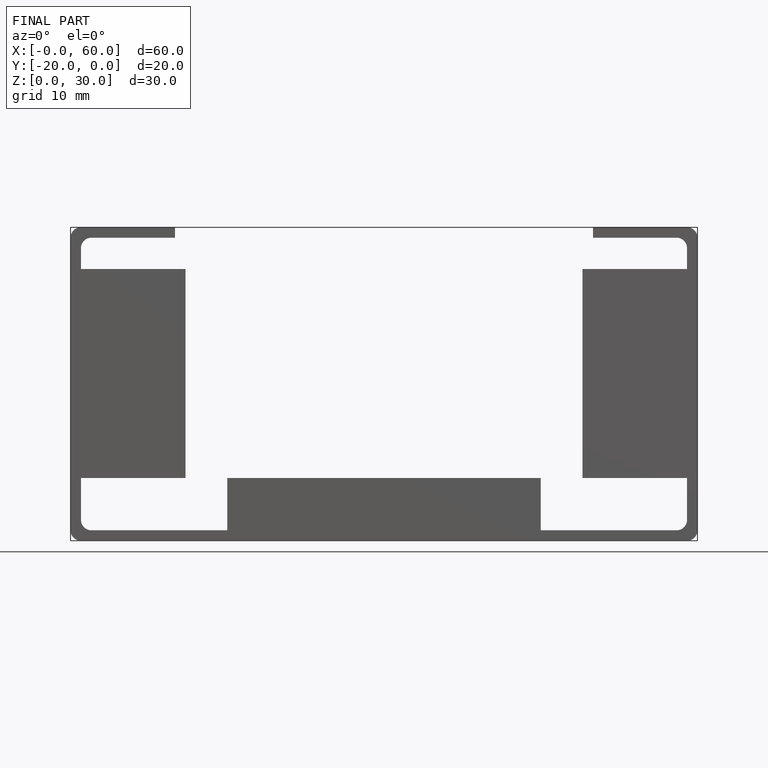
[diagram: finished part — front view with bounding-box wireframe]
